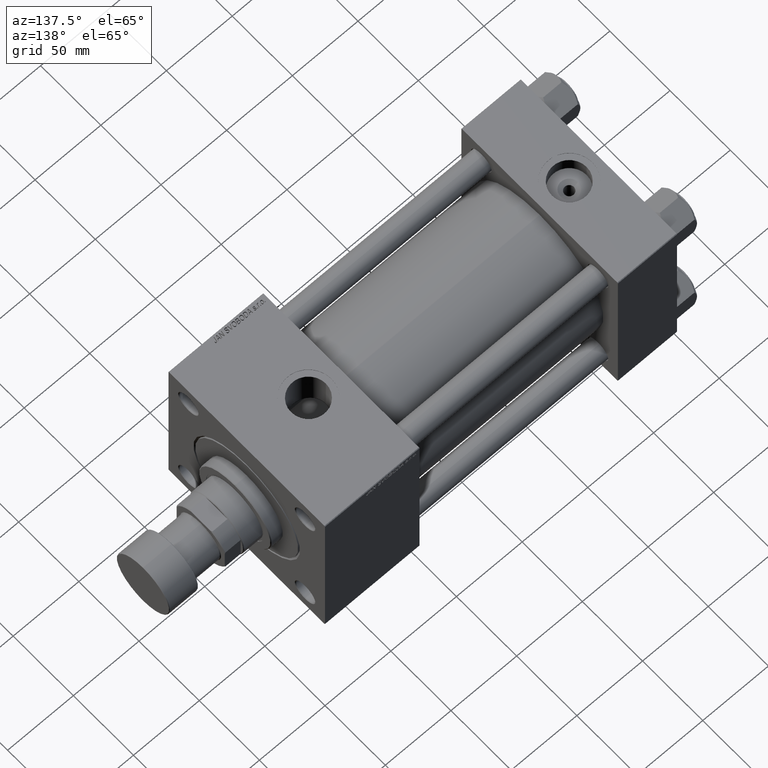
[diagram: clean part render]
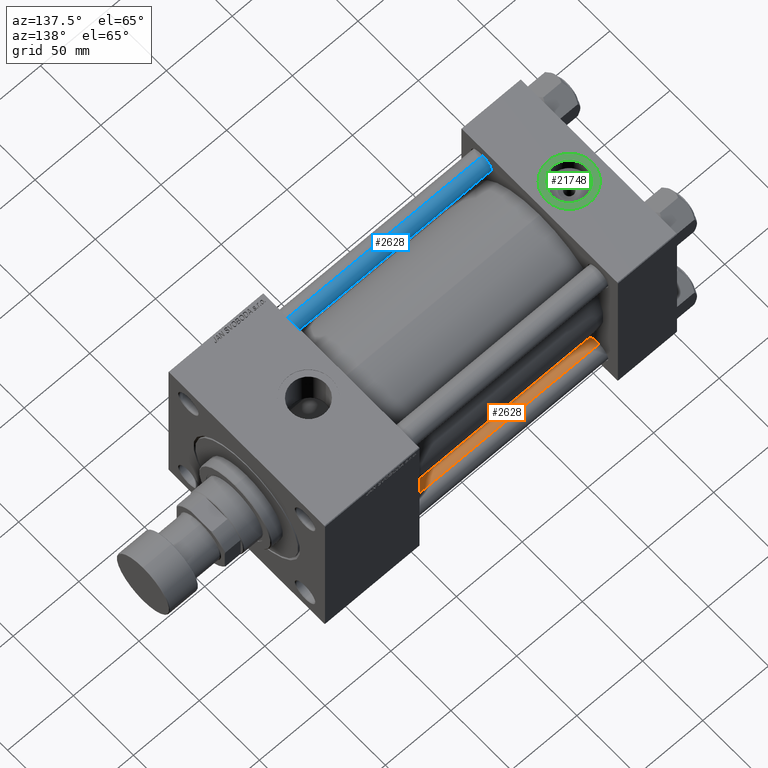
[diagram: same view with three faces highlighted in distinct colors, each labeled with its STEP entity id]
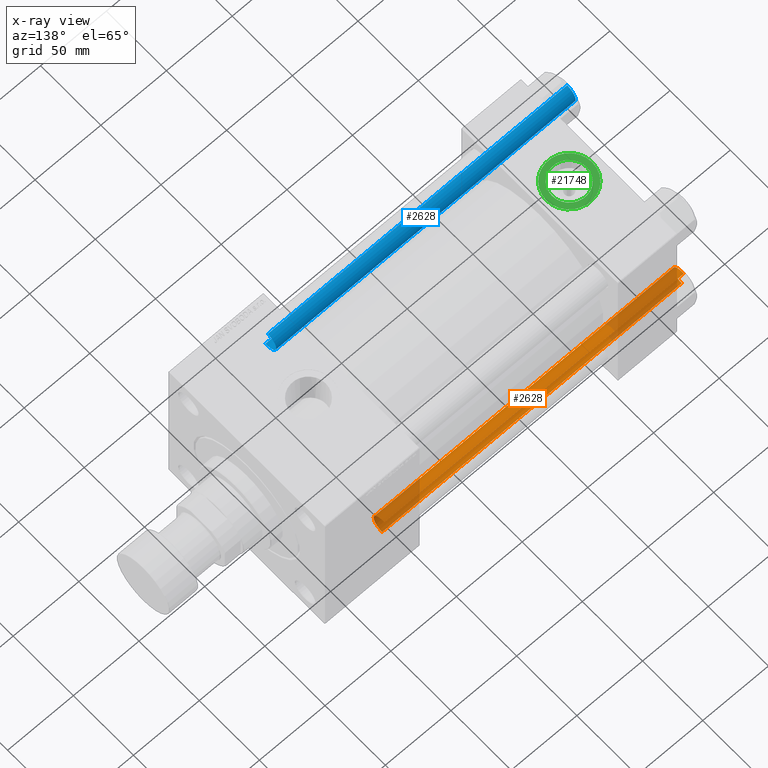
[diagram: x-ray of the same camera — body ghosted, the three highlighted faces saturated]
A machine part, auxiliary view with three faces highlighted in distinct colors.
The next image is the same camera in x-ray (body ghosted, the three faces saturated) — at least one of them is partly hidden behind the body in this view.
Their STEP definitions:

[orange] entity #2628 — the highlighted cylindrical surface (edge-blend (fillet) strip) has radius 8 mm, axis along (1, -0, 0).
#2628 = ADVANCED_FACE ( 'NONE', ( #30787 ), #3656, .T. ) ;
#2634 = DIRECTION ( 'NONE',  ( -0.000000000000000000, -0.000000000000000000, -1.000000000000000000 ) ) ;
#3449 = AXIS2_PLACEMENT_3D ( 'NONE', #46811, #10419, #49939 ) ;
#3656 = CYLINDRICAL_SURFACE ( 'NONE', #3449, 8.000000000000000000 ) ;
#4570 = DIRECTION ( 'NONE',  ( -0.000000000000000000, -0.000000000000000000, -1.000000000000000000 ) ) ;
#5720 = ORIENTED_EDGE ( 'NONE', *, *, #31635, .F. ) ;
#9562 = ORIENTED_EDGE ( 'NONE', *, *, #13773, .T. ) ;
#10419 = DIRECTION ( 'NONE',  ( -0.000000000000000000, -0.000000000000000000, -1.000000000000000000 ) ) ;
#13773 = EDGE_CURVE ( 'NONE', #41749, #18610, #36978, .T. ) ;
#15993 = CARTESIAN_POINT ( 'NONE',  ( 0.000000000000000000, 0.000000000000000000, 0.5000000000001392220 ) ) ;
#16776 = CIRCLE ( 'NONE', #27497, 8.000000000000000000 ) ;
#18211 = ORIENTED_EDGE ( 'NONE', *, *, #42347, .T. ) ;
#18610 = VERTEX_POINT ( 'NONE', #36200 ) ;
#20515 = CARTESIAN_POINT ( 'NONE',  ( -8.000000000000000000, 0.000000000000000000, 228.5000000000000853 ) ) ;
#21074 = DIRECTION ( 'NONE',  ( -0.000000000000000000, -0.000000000000000000, 1.000000000000000000 ) ) ;
#22143 = AXIS2_PLACEMENT_3D ( 'NONE', #15993, #21074, #28829 ) ;
#24185 = LINE ( 'NONE', #39959, #30341 ) ;
#26131 = LINE ( 'NONE', #41904, #50544 ) ;
#26885 = VERTEX_POINT ( 'NONE', #44128 ) ;
#27473 = EDGE_LOOP ( 'NONE', ( #5720, #44354, #18211, #9562 ) ) ;
#27497 = AXIS2_PLACEMENT_3D ( 'NONE', #41159, #34181, #46067 ) ;
#28829 = DIRECTION ( 'NONE',  ( 1.000000000000000000, 0.000000000000000000, 0.000000000000000000 ) ) ;
#30341 = VECTOR ( 'NONE', #4570, 1000.000000000000000 ) ;
#30787 = FACE_OUTER_BOUND ( 'NONE', #27473, .T. ) ;
#31635 = EDGE_CURVE ( 'NONE', #26885, #18610, #26131, .T. ) ;
#33596 = EDGE_CURVE ( 'NONE', #26885, #36343, #16776, .T. ) ;
#34181 = DIRECTION ( 'NONE',  ( 0.000000000000000000, 0.000000000000000000, -1.000000000000000000 ) ) ;
#36200 = CARTESIAN_POINT ( 'NONE',  ( 8.000000000000000000, 9.797174393178823685E-16, 0.5000000000001392220 ) ) ;
#36269 = CARTESIAN_POINT ( 'NONE',  ( -8.000000000000000000, 0.000000000000000000, 0.5000000000001392220 ) ) ;
#36343 = VERTEX_POINT ( 'NONE', #20515 ) ;
#36978 = CIRCLE ( 'NONE', #22143, 8.000000000000000000 ) ;
#39959 = CARTESIAN_POINT ( 'NONE',  ( -8.000000000000000000, 0.000000000000000000, 229.0000000000000000 ) ) ;
#41159 = CARTESIAN_POINT ( 'NONE',  ( 0.000000000000000000, 0.000000000000000000, 228.5000000000000853 ) ) ;
#41749 = VERTEX_POINT ( 'NONE', #36269 ) ;
#41904 = CARTESIAN_POINT ( 'NONE',  ( 8.000000000000000000, 9.797174393178823685E-16, 229.0000000000000000 ) ) ;
#42347 = EDGE_CURVE ( 'NONE', #36343, #41749, #24185, .T. ) ;
#44128 = CARTESIAN_POINT ( 'NONE',  ( 8.000000000000000000, 9.797174393178823685E-16, 228.5000000000000853 ) ) ;
#44354 = ORIENTED_EDGE ( 'NONE', *, *, #33596, .T. ) ;
#46067 = DIRECTION ( 'NONE',  ( 1.000000000000000000, 0.000000000000000000, 0.000000000000000000 ) ) ;
#46811 = CARTESIAN_POINT ( 'NONE',  ( 0.000000000000000000, 0.000000000000000000, 229.0000000000000000 ) ) ;
#49939 = DIRECTION ( 'NONE',  ( -1.000000000000000000, 0.000000000000000000, 0.000000000000000000 ) ) ;
#50544 = VECTOR ( 'NONE', #2634, 1000.000000000000000 ) ;

[blue] entity #2628 — the highlighted cylindrical surface (edge-blend (fillet) strip) has radius 8 mm, axis along (1, 0, -0).
#2628 = ADVANCED_FACE ( 'NONE', ( #30787 ), #3656, .T. ) ;
#2634 = DIRECTION ( 'NONE',  ( -0.000000000000000000, -0.000000000000000000, -1.000000000000000000 ) ) ;
#3449 = AXIS2_PLACEMENT_3D ( 'NONE', #46811, #10419, #49939 ) ;
#3656 = CYLINDRICAL_SURFACE ( 'NONE', #3449, 8.000000000000000000 ) ;
#4570 = DIRECTION ( 'NONE',  ( -0.000000000000000000, -0.000000000000000000, -1.000000000000000000 ) ) ;
#5720 = ORIENTED_EDGE ( 'NONE', *, *, #31635, .F. ) ;
#9562 = ORIENTED_EDGE ( 'NONE', *, *, #13773, .T. ) ;
#10419 = DIRECTION ( 'NONE',  ( -0.000000000000000000, -0.000000000000000000, -1.000000000000000000 ) ) ;
#13773 = EDGE_CURVE ( 'NONE', #41749, #18610, #36978, .T. ) ;
#15993 = CARTESIAN_POINT ( 'NONE',  ( 0.000000000000000000, 0.000000000000000000, 0.5000000000001392220 ) ) ;
#16776 = CIRCLE ( 'NONE', #27497, 8.000000000000000000 ) ;
#18211 = ORIENTED_EDGE ( 'NONE', *, *, #42347, .T. ) ;
#18610 = VERTEX_POINT ( 'NONE', #36200 ) ;
#20515 = CARTESIAN_POINT ( 'NONE',  ( -8.000000000000000000, 0.000000000000000000, 228.5000000000000853 ) ) ;
#21074 = DIRECTION ( 'NONE',  ( -0.000000000000000000, -0.000000000000000000, 1.000000000000000000 ) ) ;
#22143 = AXIS2_PLACEMENT_3D ( 'NONE', #15993, #21074, #28829 ) ;
#24185 = LINE ( 'NONE', #39959, #30341 ) ;
#26131 = LINE ( 'NONE', #41904, #50544 ) ;
#26885 = VERTEX_POINT ( 'NONE', #44128 ) ;
#27473 = EDGE_LOOP ( 'NONE', ( #5720, #44354, #18211, #9562 ) ) ;
#27497 = AXIS2_PLACEMENT_3D ( 'NONE', #41159, #34181, #46067 ) ;
#28829 = DIRECTION ( 'NONE',  ( 1.000000000000000000, 0.000000000000000000, 0.000000000000000000 ) ) ;
#30341 = VECTOR ( 'NONE', #4570, 1000.000000000000000 ) ;
#30787 = FACE_OUTER_BOUND ( 'NONE', #27473, .T. ) ;
#31635 = EDGE_CURVE ( 'NONE', #26885, #18610, #26131, .T. ) ;
#33596 = EDGE_CURVE ( 'NONE', #26885, #36343, #16776, .T. ) ;
#34181 = DIRECTION ( 'NONE',  ( 0.000000000000000000, 0.000000000000000000, -1.000000000000000000 ) ) ;
#36200 = CARTESIAN_POINT ( 'NONE',  ( 8.000000000000000000, 9.797174393178823685E-16, 0.5000000000001392220 ) ) ;
#36269 = CARTESIAN_POINT ( 'NONE',  ( -8.000000000000000000, 0.000000000000000000, 0.5000000000001392220 ) ) ;
#36343 = VERTEX_POINT ( 'NONE', #20515 ) ;
#36978 = CIRCLE ( 'NONE', #22143, 8.000000000000000000 ) ;
#39959 = CARTESIAN_POINT ( 'NONE',  ( -8.000000000000000000, 0.000000000000000000, 229.0000000000000000 ) ) ;
#41159 = CARTESIAN_POINT ( 'NONE',  ( 0.000000000000000000, 0.000000000000000000, 228.5000000000000853 ) ) ;
#41749 = VERTEX_POINT ( 'NONE', #36269 ) ;
#41904 = CARTESIAN_POINT ( 'NONE',  ( 8.000000000000000000, 9.797174393178823685E-16, 229.0000000000000000 ) ) ;
#42347 = EDGE_CURVE ( 'NONE', #36343, #41749, #24185, .T. ) ;
#44128 = CARTESIAN_POINT ( 'NONE',  ( 8.000000000000000000, 9.797174393178823685E-16, 228.5000000000000853 ) ) ;
#44354 = ORIENTED_EDGE ( 'NONE', *, *, #33596, .T. ) ;
#46067 = DIRECTION ( 'NONE',  ( 1.000000000000000000, 0.000000000000000000, 0.000000000000000000 ) ) ;
#46811 = CARTESIAN_POINT ( 'NONE',  ( 0.000000000000000000, 0.000000000000000000, 229.0000000000000000 ) ) ;
#49939 = DIRECTION ( 'NONE',  ( -1.000000000000000000, 0.000000000000000000, 0.000000000000000000 ) ) ;
#50544 = VECTOR ( 'NONE', #2634, 1000.000000000000000 ) ;

[green] entity #21748 — the highlighted planar face has unit normal (0, 0, 1).
#43 = CARTESIAN_POINT ( 'NONE',  ( 22.50000000000000000, -8.673617379884035472E-15, 64.79999999999999716 ) ) ;
#371 = ORIENTED_EDGE ( 'NONE', *, *, #44220, .F. ) ;
#653 = AXIS2_PLACEMENT_3D ( 'NONE', #46097, #22315, #45323 ) ;
#2197 = EDGE_CURVE ( 'NONE', #42458, #9066, #5112, .T. ) ;
#2336 = PLANE ( 'NONE',  #29691 ) ;
#2869 = DIRECTION ( 'NONE',  ( 0.000000000000000000, 0.000000000000000000, 1.000000000000000000 ) ) ;
#4640 = CARTESIAN_POINT ( 'NONE',  ( 35.71999999999999886, -8.673617379884035472E-15, 64.79999999999999716 ) ) ;
#5112 = CIRCLE ( 'NONE', #29035, 17.50000000000000000 ) ;
#6364 = ORIENTED_EDGE ( 'NONE', *, *, #43675, .F. ) ;
#8893 = AXIS2_PLACEMENT_3D ( 'NONE', #43, #15783, #47321 ) ;
#9066 = VERTEX_POINT ( 'NONE', #11442 ) ;
#9423 = DIRECTION ( 'NONE',  ( 0.000000000000000000, 0.000000000000000000, 1.000000000000000000 ) ) ;
#11442 = CARTESIAN_POINT ( 'NONE',  ( 40.00000000000000000, -8.673617379884035472E-15, 64.79999999999999716 ) ) ;
#13797 = DIRECTION ( 'NONE',  ( 1.000000000000000000, 0.000000000000000000, 0.000000000000000000 ) ) ;
#15783 = DIRECTION ( 'NONE',  ( 0.000000000000000000, 0.000000000000000000, 1.000000000000000000 ) ) ;
#17767 = EDGE_CURVE ( 'NONE', #9066, #42458, #31152, .T. ) ;
#18093 = CARTESIAN_POINT ( 'NONE',  ( 22.50000000000000000, -8.673617379884035472E-15, 64.79999999999999716 ) ) ;
#19496 = VERTEX_POINT ( 'NONE', #26207 ) ;
#21748 = ADVANCED_FACE ( 'NONE', ( #25849, #37747 ), #2336, .T. ) ;
#22315 = DIRECTION ( 'NONE',  ( 0.000000000000000000, 0.000000000000000000, 1.000000000000000000 ) ) ;
#23109 = CARTESIAN_POINT ( 'NONE',  ( 4.999999999999997335, -6.530485481376167224E-15, 64.79999999999999716 ) ) ;
#25596 = DIRECTION ( 'NONE',  ( 1.000000000000000000, 0.000000000000000000, 0.000000000000000000 ) ) ;
#25849 = FACE_BOUND ( 'NONE', #49685, .T. ) ;
#26207 = CARTESIAN_POINT ( 'NONE',  ( 9.279999999999994031, -7.054634311411234321E-15, 64.79999999999999716 ) ) ;
#29035 = AXIS2_PLACEMENT_3D ( 'NONE', #30489, #2869, #25596 ) ;
#29691 = AXIS2_PLACEMENT_3D ( 'NONE', #18093, #33855, #35267 ) ;
#30033 = ORIENTED_EDGE ( 'NONE', *, *, #2197, .T. ) ;
#30489 = CARTESIAN_POINT ( 'NONE',  ( 22.50000000000000000, -8.673617379884035472E-15, 64.79999999999999716 ) ) ;
#31115 = VERTEX_POINT ( 'NONE', #4640 ) ;
#31152 = CIRCLE ( 'NONE', #8893, 17.50000000000000000 ) ;
#31782 = ORIENTED_EDGE ( 'NONE', *, *, #17767, .T. ) ;
#33688 = CARTESIAN_POINT ( 'NONE',  ( 22.50000000000000000, -8.673617379884035472E-15, 64.79999999999999716 ) ) ;
#33855 = DIRECTION ( 'NONE',  ( 0.000000000000000000, 0.000000000000000000, 1.000000000000000000 ) ) ;
#35267 = DIRECTION ( 'NONE',  ( 1.000000000000000000, 0.000000000000000000, -0.000000000000000000 ) ) ;
#37747 = FACE_OUTER_BOUND ( 'NONE', #46413, .T. ) ;
#37856 = CIRCLE ( 'NONE', #48567, 13.22000000000000242 ) ;
#42458 = VERTEX_POINT ( 'NONE', #23109 ) ;
#43675 = EDGE_CURVE ( 'NONE', #31115, #19496, #46872, .T. ) ;
#44220 = EDGE_CURVE ( 'NONE', #19496, #31115, #37856, .T. ) ;
#45323 = DIRECTION ( 'NONE',  ( 1.000000000000000000, 0.000000000000000000, 0.000000000000000000 ) ) ;
#46097 = CARTESIAN_POINT ( 'NONE',  ( 22.50000000000000000, -8.673617379884035472E-15, 64.79999999999999716 ) ) ;
#46413 = EDGE_LOOP ( 'NONE', ( #31782, #30033 ) ) ;
#46872 = CIRCLE ( 'NONE', #653, 13.22000000000000242 ) ;
#47321 = DIRECTION ( 'NONE',  ( 1.000000000000000000, 0.000000000000000000, 0.000000000000000000 ) ) ;
#48567 = AXIS2_PLACEMENT_3D ( 'NONE', #33688, #9423, #13797 ) ;
#49685 = EDGE_LOOP ( 'NONE', ( #6364, #371 ) ) ;